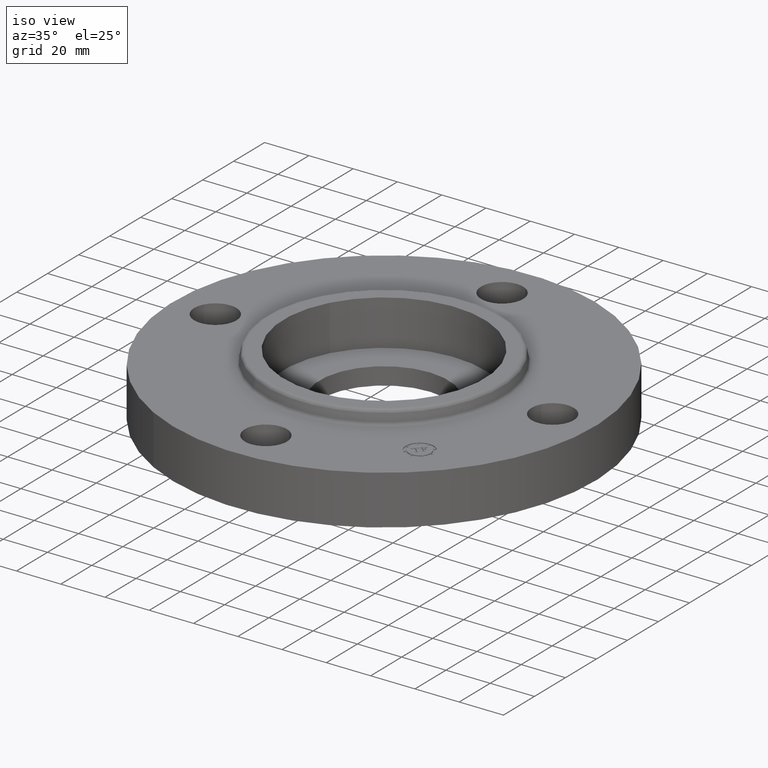
[diagram: clean part render]
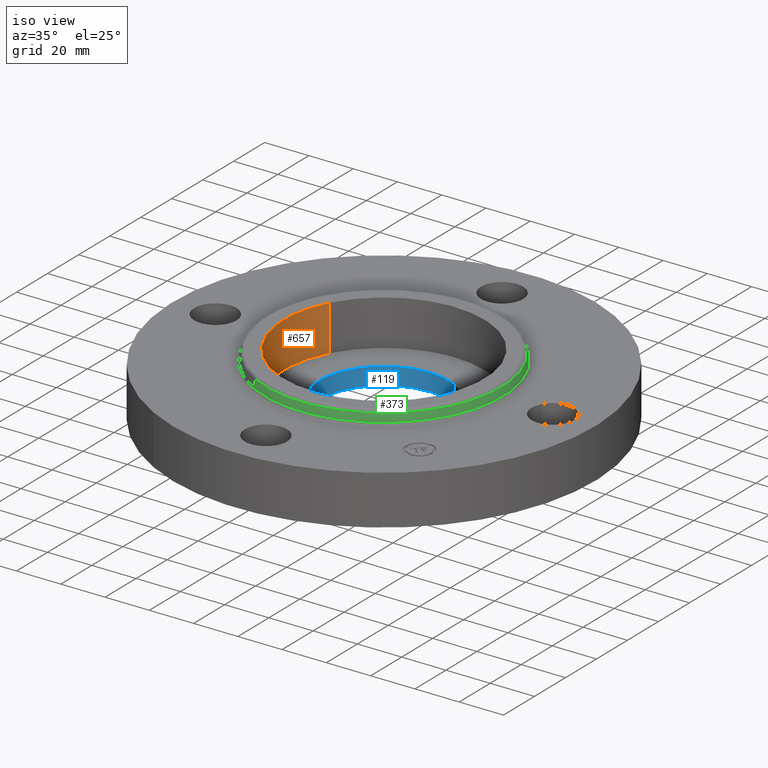
[diagram: same view with three faces highlighted in distinct colors, each labeled with its STEP entity id]
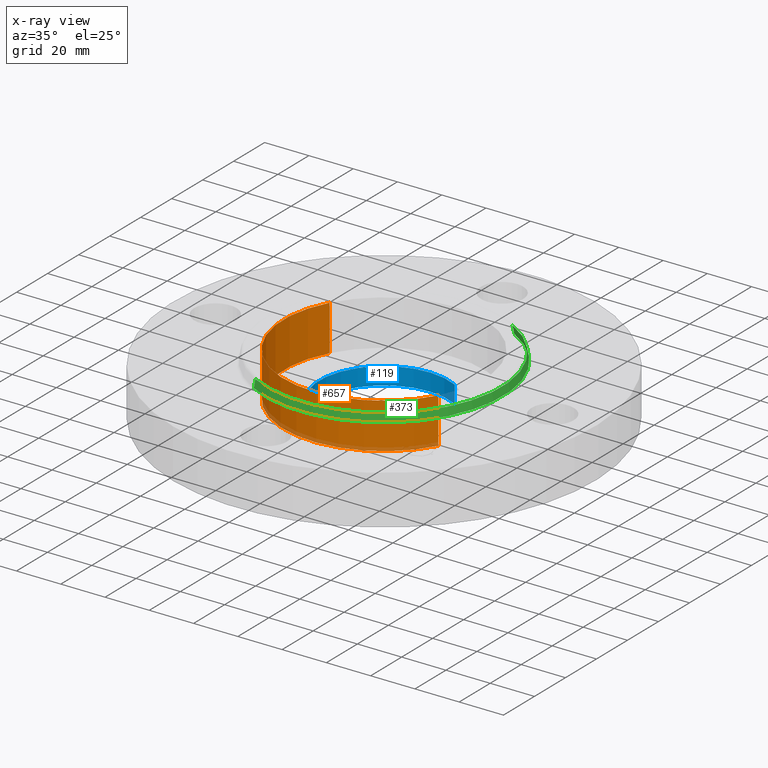
[diagram: x-ray of the same camera — body ghosted, the three highlighted faces saturated]
A machine part, iso view with three faces highlighted in distinct colors.
The next image is the same camera in x-ray (body ghosted, the three faces saturated) — at least one of them is partly hidden behind the body in this view.
Their STEP definitions:

[orange] entity #657 — the highlighted cylindrical surface (partial cylindrical patch) has radius 45.339 mm, axis along (0, 0, -1).
#51=AXIS2_PLACEMENT_3D('Circle Axis2P3D',#49,#50,$) ;
#449=AXIS2_PLACEMENT_3D('Circle Axis2P3D',#447,#448,$) ;
#632=AXIS2_PLACEMENT_3D('Cylinder Axis2P3D',#629,#630,#631) ;
#44=CARTESIAN_POINT('Vertex',(-1.56648487298,0.855774586412,0.310000000001)) ;
#46=CARTESIAN_POINT('Vertex',(1.56648487298,-0.855774586412,0.310000000001)) ;
#49=CARTESIAN_POINT('Axis2P3D Location',(0.,-6.99353086378E-017,0.310000000001)) ;
#442=CARTESIAN_POINT('Vertex',(-1.56648487298,0.855774586412,1.12)) ;
#444=CARTESIAN_POINT('Vertex',(1.56648487298,-0.855774586412,1.12)) ;
#447=CARTESIAN_POINT('Axis2P3D Location',(1.39870617276E-016,0.,1.12)) ;
#629=CARTESIAN_POINT('Axis2P3D Location',(0.,-6.99353086378E-017,1.11606299213)) ;
#634=CARTESIAN_POINT('Line Origine',(-1.56648487298,0.855774586412,0.715000000003)) ;
#639=CARTESIAN_POINT('Line Origine',(1.56648487298,-0.855774586412,0.715000000003)) ;
#50=DIRECTION('Axis2P3D Direction',(0.,0.,-0.0393700787402)) ;
#448=DIRECTION('Axis2P3D Direction',(0.,0.,-0.0393700787402)) ;
#630=DIRECTION('Axis2P3D Direction',(0.,0.,-0.0393700787402)) ;
#631=DIRECTION('Axis2P3D XDirection',(0.0345504945626,-0.0188750212049,0.)) ;
#635=DIRECTION('Vector Direction',(0.,0.,-0.0393700787402)) ;
#640=DIRECTION('Vector Direction',(0.,0.,-0.0393700787402)) ;
#636=VECTOR('Line Direction',#635,0.0393700787402) ;
#641=VECTOR('Line Direction',#640,0.0393700787402) ;
#652=ORIENTED_EDGE('',*,*,#451,.F.) ;
#653=ORIENTED_EDGE('',*,*,#643,.F.) ;
#654=ORIENTED_EDGE('',*,*,#53,.T.) ;
#655=ORIENTED_EDGE('',*,*,#638,.T.) ;
#657=ADVANCED_FACE('PartBody',(#656),#633,.F.) ;
#52=CIRCLE('generated circle',#51,1.78500000001) ;
#450=CIRCLE('generated circle',#449,1.78500000001) ;
#633=CYLINDRICAL_SURFACE('generated cylinder',#632,1.78500000001) ;
#53=EDGE_CURVE('',#47,#45,#52,.T.) ;
#451=EDGE_CURVE('',#445,#443,#450,.T.) ;
#638=EDGE_CURVE('',#45,#443,#637,.F.) ;
#643=EDGE_CURVE('',#47,#445,#642,.F.) ;
#651=EDGE_LOOP('',(#652,#653,#654,#655)) ;
#656=FACE_OUTER_BOUND('',#651,.T.) ;
#637=LINE('Line',#634,#636) ;
#642=LINE('Line',#639,#641) ;
#45=VERTEX_POINT('',#44) ;
#47=VERTEX_POINT('',#46) ;
#443=VERTEX_POINT('',#442) ;
#445=VERTEX_POINT('',#444) ;

[blue] entity #119 — the highlighted cylindrical surface (partial cylindrical patch) has radius 29.21 mm, axis along (0, 0, -1).
#60=AXIS2_PLACEMENT_3D('Circle Axis2P3D',#58,#59,$) ;
#80=AXIS2_PLACEMENT_3D('Cylinder Axis2P3D',#77,#78,#79) ;
#110=AXIS2_PLACEMENT_3D('Circle Axis2P3D',#108,#109,$) ;
#58=CARTESIAN_POINT('Axis2P3D Location',(-1.39870617276E-016,-1.04902962957E-016,0.310000000001)) ;
#62=CARTESIAN_POINT('Vertex',(-0.551339369397,-1.00921994618,0.310000000001)) ;
#64=CARTESIAN_POINT('Vertex',(0.551339369397,1.00921994618,0.310000000001)) ;
#77=CARTESIAN_POINT('Axis2P3D Location',(0.,0.,0.560000000002)) ;
#82=CARTESIAN_POINT('Line Origine',(0.551339369397,1.00921994618,0.155000000001)) ;
#86=CARTESIAN_POINT('Vertex',(0.551339369397,1.00921994618,-5.87456592558E-015)) ;
#93=CARTESIAN_POINT('Vertex',(-0.551339369397,-1.00921994618,-5.87456592558E-015)) ;
#96=CARTESIAN_POINT('Line Origine',(-0.551339369397,-1.00921994618,0.155000000001)) ;
#108=CARTESIAN_POINT('Axis2P3D Location',(0.,0.,-5.87456592558E-015)) ;
#59=DIRECTION('Axis2P3D Direction',(0.,0.,-0.0393700787402)) ;
#78=DIRECTION('Axis2P3D Direction',(0.,0.,-0.0393700787402)) ;
#79=DIRECTION('Axis2P3D XDirection',(-0.0188750212049,-0.0345504945626,0.)) ;
#83=DIRECTION('Vector Direction',(0.,0.,-0.0393700787402)) ;
#97=DIRECTION('Vector Direction',(0.,0.,-0.0393700787402)) ;
#109=DIRECTION('Axis2P3D Direction',(0.,0.,-0.0393700787402)) ;
#84=VECTOR('Line Direction',#83,0.0393700787402) ;
#98=VECTOR('Line Direction',#97,0.0393700787402) ;
#114=ORIENTED_EDGE('',*,*,#100,.T.) ;
#115=ORIENTED_EDGE('',*,*,#112,.T.) ;
#116=ORIENTED_EDGE('',*,*,#88,.F.) ;
#117=ORIENTED_EDGE('',*,*,#66,.F.) ;
#119=ADVANCED_FACE('PartBody',(#118),#81,.F.) ;
#61=CIRCLE('generated circle',#60,1.15) ;
#111=CIRCLE('generated circle',#110,1.15) ;
#81=CYLINDRICAL_SURFACE('generated cylinder',#80,1.15) ;
#66=EDGE_CURVE('',#63,#65,#61,.T.) ;
#88=EDGE_CURVE('',#65,#87,#85,.T.) ;
#100=EDGE_CURVE('',#63,#94,#99,.T.) ;
#112=EDGE_CURVE('',#94,#87,#111,.T.) ;
#113=EDGE_LOOP('',(#114,#115,#116,#117)) ;
#118=FACE_OUTER_BOUND('',#113,.T.) ;
#85=LINE('Line',#82,#84) ;
#99=LINE('Line',#96,#98) ;
#63=VERTEX_POINT('',#62) ;
#65=VERTEX_POINT('',#64) ;
#87=VERTEX_POINT('',#86) ;
#94=VERTEX_POINT('',#93) ;

[green] entity #373 — the highlighted conical surface has half-angle 10 deg.
#309=AXIS2_PLACEMENT_3D('Circle Axis2P3D',#307,#308,$) ;
#346=AXIS2_PLACEMENT_3D('Cone Axis2P3D',#343,#344,#345) ;
#357=AXIS2_PLACEMENT_3D('Circle Axis2P3D',#355,#356,$) ;
#304=CARTESIAN_POINT('Vertex',(1.01458789785,1.85719068961,0.929581109344)) ;
#307=CARTESIAN_POINT('Axis2P3D Location',(0.,0.,0.929581109344)) ;
#311=CARTESIAN_POINT('Vertex',(-1.01458789785,-1.85719068961,0.929581109344)) ;
#343=CARTESIAN_POINT('Axis2P3D Location',(0.,0.,1.07041889066)) ;
#348=CARTESIAN_POINT('Line Origine',(1.00863499061,1.84629396601,1.)) ;
#352=CARTESIAN_POINT('Vertex',(1.00268208338,1.8353972424,1.07041889066)) ;
#355=CARTESIAN_POINT('Axis2P3D Location',(0.,0.,1.07041889066)) ;
#359=CARTESIAN_POINT('Vertex',(-1.00268208338,-1.8353972424,1.07041889066)) ;
#362=CARTESIAN_POINT('Line Origine',(-1.00863499061,-1.84629396601,1.)) ;
#308=DIRECTION('Axis2P3D Direction',(0.,0.,-0.0393700787402)) ;
#344=DIRECTION('Axis2P3D Direction',(0.,0.,-0.0393700787402)) ;
#345=DIRECTION('Axis2P3D XDirection',(-0.0188750212049,-0.0345504945626,0.)) ;
#349=DIRECTION('Vector Direction',(0.00327761303565,0.00599963041829,-0.03877195878)) ;
#356=DIRECTION('Axis2P3D Direction',(0.,0.,-0.0393700787402)) ;
#363=DIRECTION('Vector Direction',(-0.00327761303565,-0.00599963041829,-0.03877195878)) ;
#350=VECTOR('Line Direction',#349,0.0393700787402) ;
#364=VECTOR('Line Direction',#363,0.0393700787402) ;
#368=ORIENTED_EDGE('',*,*,#313,.F.) ;
#369=ORIENTED_EDGE('',*,*,#354,.T.) ;
#370=ORIENTED_EDGE('',*,*,#361,.T.) ;
#371=ORIENTED_EDGE('',*,*,#366,.F.) ;
#373=ADVANCED_FACE('PartBody',(#372),#347,.T.) ;
#310=CIRCLE('generated circle',#309,2.1162575127) ;
#358=CIRCLE('generated circle',#357,2.09142401195) ;
#347=CONICAL_SURFACE('Cone',#346,2.09142401195,0.174532925199) ;
#313=EDGE_CURVE('',#305,#312,#310,.T.) ;
#354=EDGE_CURVE('',#305,#353,#351,.F.) ;
#361=EDGE_CURVE('',#353,#360,#358,.T.) ;
#366=EDGE_CURVE('',#312,#360,#365,.F.) ;
#367=EDGE_LOOP('',(#368,#369,#370,#371)) ;
#372=FACE_OUTER_BOUND('',#367,.T.) ;
#351=LINE('Line',#348,#350) ;
#365=LINE('Line',#362,#364) ;
#305=VERTEX_POINT('',#304) ;
#312=VERTEX_POINT('',#311) ;
#353=VERTEX_POINT('',#352) ;
#360=VERTEX_POINT('',#359) ;